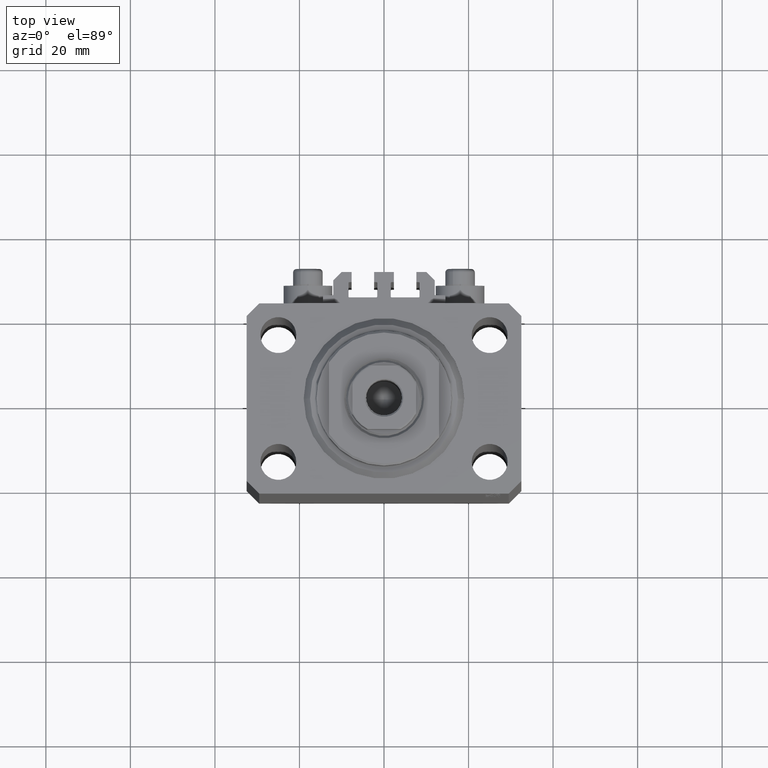
[diagram: clean part render]
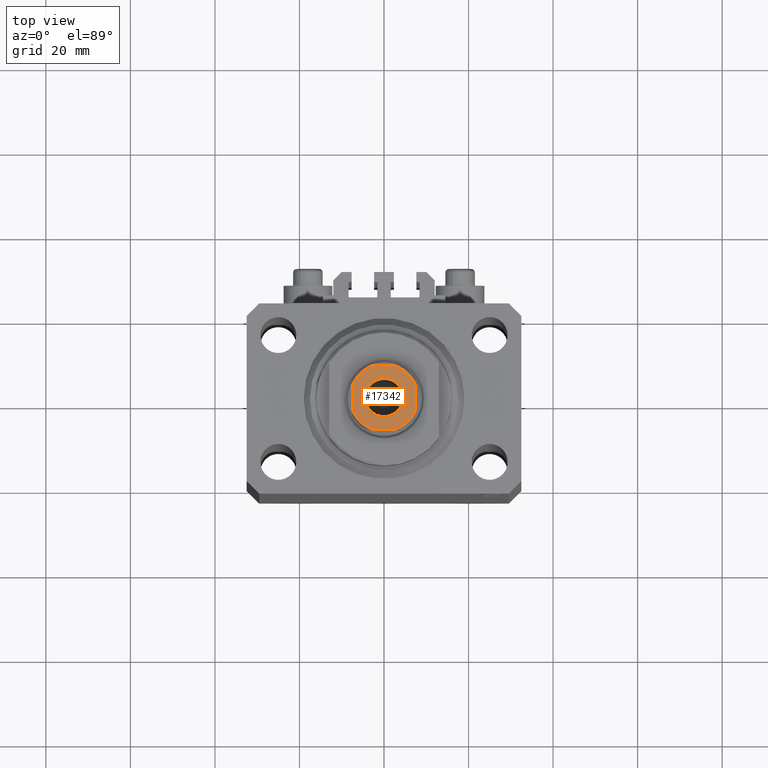
[diagram: same view with one face highlighted and labeled with its STEP entity id]
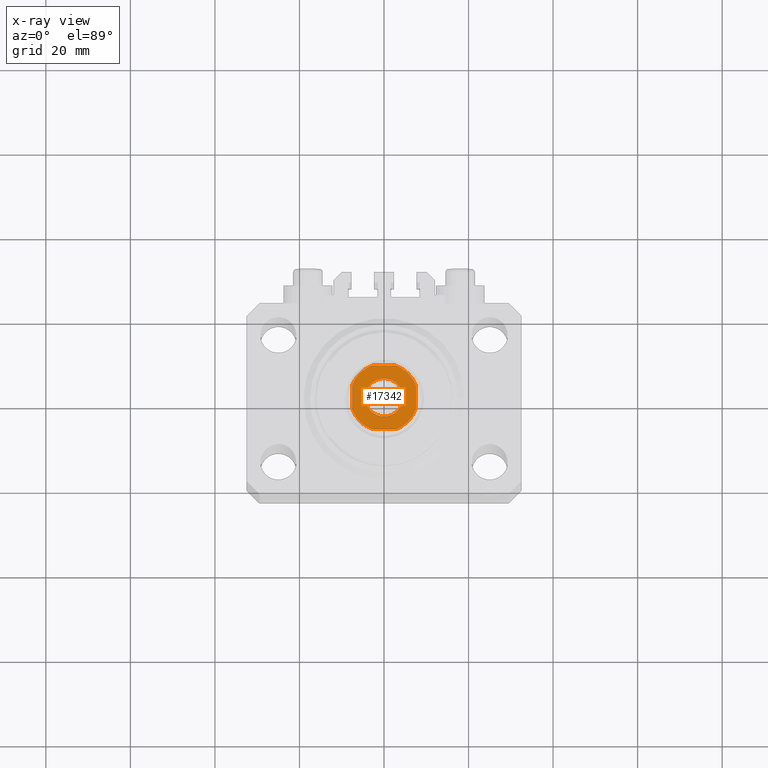
[diagram: x-ray of the same camera — body ghosted, the highlighted face saturated]
A machine part, top view. The second image highlights one B-rep face of the part: STEP entity #17342.
The next image is the same camera in x-ray: the body ghosted, the highlighted face saturated — about 0% of this face is hidden behind the body in this view.
In plain terms, the highlighted planar face has unit normal (0, 0, 1).
Its self-contained STEP definition (entity closure, byte-faithful):
#281 = DIRECTION ( 'NONE',  ( 1.156482317317871478E-16, 1.000000000000000000, -0.000000000000000000 ) ) ;
#819 = VERTEX_POINT ( 'NONE', #9423 ) ;
#2029 = CARTESIAN_POINT ( 'NONE',  ( 0.000000000000000000, 0.000000000000000000, 144.0999999999999943 ) ) ;
#2064 = CARTESIAN_POINT ( 'NONE',  ( -4.549999999999984723, 5.572142936120437605E-16, 144.0999999999999943 ) ) ;
#2948 = AXIS2_PLACEMENT_3D ( 'NONE', #4372, #37632, #19420 ) ;
#3017 = VECTOR ( 'NONE', #281, 1000.000000000000000 ) ;
#3458 = CIRCLE ( 'NONE', #34785, 8.000000000000000000 ) ;
#3656 = DIRECTION ( 'NONE',  ( 1.000000000000000000, 0.000000000000000000, 0.000000000000000000 ) ) ;
#4159 = EDGE_CURVE ( 'NONE', #21316, #46667, #33305, .T. ) ;
#4372 = CARTESIAN_POINT ( 'NONE',  ( 0.000000000000000000, 0.000000000000000000, 144.0999999999999943 ) ) ;
#6267 = CIRCLE ( 'NONE', #30735, 8.000000000000000000 ) ;
#7174 = EDGE_CURVE ( 'NONE', #15981, #15274, #21898, .T. ) ;
#7246 = FACE_OUTER_BOUND ( 'NONE', #31788, .T. ) ;
#7713 = VERTEX_POINT ( 'NONE', #31856 ) ;
#8348 = DIRECTION ( 'NONE',  ( 1.000000000000000000, 0.000000000000000000, 0.000000000000000000 ) ) ;
#9423 = CARTESIAN_POINT ( 'NONE',  ( -7.499999999999998224, 2.783882181415015644, 144.0999999999999943 ) ) ;
#9989 = ORIENTED_EDGE ( 'NONE', *, *, #15925, .T. ) ;
#10284 = AXIS2_PLACEMENT_3D ( 'NONE', #14996, #26486, #26007 ) ;
#10748 = VECTOR ( 'NONE', #18689, 1000.000000000000000 ) ;
#11188 = ORIENTED_EDGE ( 'NONE', *, *, #42614, .T. ) ;
#11964 = DIRECTION ( 'NONE',  ( 1.000000000000000000, 0.000000000000000000, 0.000000000000000000 ) ) ;
#13076 = VERTEX_POINT ( 'NONE', #22460 ) ;
#13570 = EDGE_CURVE ( 'NONE', #7713, #22781, #19853, .T. ) ;
#14054 = CARTESIAN_POINT ( 'NONE',  ( 7.500000000000000888, 2.783882181415007206, 144.0999999999999943 ) ) ;
#14408 = CARTESIAN_POINT ( 'NONE',  ( 7.500000000000001776, 7.500000000000000000, 144.0999999999999943 ) ) ;
#14530 = VECTOR ( 'NONE', #43668, 1000.000000000000000 ) ;
#14645 = LINE ( 'NONE', #40492, #10748 ) ;
#14996 = CARTESIAN_POINT ( 'NONE',  ( 0.000000000000000000, 0.000000000000000000, 144.0999999999999943 ) ) ;
#15039 = DIRECTION ( 'NONE',  ( 5.782411586589357392E-17, -1.000000000000000000, 0.000000000000000000 ) ) ;
#15274 = VERTEX_POINT ( 'NONE', #20562 ) ;
#15925 = EDGE_CURVE ( 'NONE', #13076, #46545, #14645, .T. ) ;
#15981 = VERTEX_POINT ( 'NONE', #22532 ) ;
#16431 = ORIENTED_EDGE ( 'NONE', *, *, #40035, .T. ) ;
#16487 = DIRECTION ( 'NONE',  ( 0.000000000000000000, -0.000000000000000000, -1.000000000000000000 ) ) ;
#17002 = CARTESIAN_POINT ( 'NONE',  ( 2.783882181415008539, -7.500000000000000888, 144.0999999999999943 ) ) ;
#17148 = CIRCLE ( 'NONE', #10284, 8.000000000000000000 ) ;
#17342 = ADVANCED_FACE ( 'NONE', ( #33094, #7246 ), #22081, .T. ) ;
#18320 = AXIS2_PLACEMENT_3D ( 'NONE', #2029, #26935, #27180 ) ;
#18689 = DIRECTION ( 'NONE',  ( 1.000000000000000000, 5.782411586589358625E-17, 0.000000000000000000 ) ) ;
#18851 = EDGE_CURVE ( 'NONE', #24403, #13076, #6267, .T. ) ;
#18906 = DIRECTION ( 'NONE',  ( -0.000000000000000000, 0.000000000000000000, 1.000000000000000000 ) ) ;
#19178 = AXIS2_PLACEMENT_3D ( 'NONE', #46755, #25443, #3656 ) ;
#19420 = DIRECTION ( 'NONE',  ( 1.000000000000000000, 0.000000000000000000, 0.000000000000000000 ) ) ;
#19853 = CIRCLE ( 'NONE', #18320, 4.549999999999984723 ) ;
#20062 = CARTESIAN_POINT ( 'NONE',  ( 0.000000000000000000, 0.000000000000000000, 144.0999999999999943 ) ) ;
#20562 = CARTESIAN_POINT ( 'NONE',  ( -2.783882181415013868, 7.499999999999999112, 144.0999999999999943 ) ) ;
#21316 = VERTEX_POINT ( 'NONE', #31793 ) ;
#21898 = LINE ( 'NONE', #29100, #14530 ) ;
#22081 = PLANE ( 'NONE',  #19178 ) ;
#22460 = CARTESIAN_POINT ( 'NONE',  ( -2.783882181415010315, -7.500000000000000888, 144.0999999999999943 ) ) ;
#22527 = EDGE_CURVE ( 'NONE', #22781, #7713, #37704, .T. ) ;
#22532 = CARTESIAN_POINT ( 'NONE',  ( 2.783882181415012980, 7.500000000000000000, 144.0999999999999943 ) ) ;
#22781 = VERTEX_POINT ( 'NONE', #2064 ) ;
#24210 = CARTESIAN_POINT ( 'NONE',  ( -7.499999999999998224, -2.783882181415016088, 144.0999999999999943 ) ) ;
#24403 = VERTEX_POINT ( 'NONE', #24210 ) ;
#25141 = CIRCLE ( 'NONE', #2948, 8.000000000000000000 ) ;
#25443 = DIRECTION ( 'NONE',  ( -0.000000000000000000, 0.000000000000000000, 1.000000000000000000 ) ) ;
#25492 = ORIENTED_EDGE ( 'NONE', *, *, #45035, .T. ) ;
#25582 = CARTESIAN_POINT ( 'NONE',  ( -7.499999999999998224, 7.499999999999999112, 144.0999999999999943 ) ) ;
#25711 = ORIENTED_EDGE ( 'NONE', *, *, #7174, .T. ) ;
#26007 = DIRECTION ( 'NONE',  ( 1.000000000000000000, 0.000000000000000000, 0.000000000000000000 ) ) ;
#26340 = CARTESIAN_POINT ( 'NONE',  ( 0.000000000000000000, 0.000000000000000000, 144.0999999999999943 ) ) ;
#26486 = DIRECTION ( 'NONE',  ( -0.000000000000000000, 0.000000000000000000, 1.000000000000000000 ) ) ;
#26935 = DIRECTION ( 'NONE',  ( 0.000000000000000000, -0.000000000000000000, -1.000000000000000000 ) ) ;
#27180 = DIRECTION ( 'NONE',  ( 1.000000000000000000, 0.000000000000000000, 0.000000000000000000 ) ) ;
#27278 = DIRECTION ( 'NONE',  ( -0.000000000000000000, 0.000000000000000000, 1.000000000000000000 ) ) ;
#28567 = AXIS2_PLACEMENT_3D ( 'NONE', #20062, #16487, #8348 ) ;
#29100 = CARTESIAN_POINT ( 'NONE',  ( -7.499999999999998224, 7.499999999999999112, 144.0999999999999943 ) ) ;
#29181 = LINE ( 'NONE', #25582, #30218 ) ;
#30218 = VECTOR ( 'NONE', #15039, 1000.000000000000000 ) ;
#30735 = AXIS2_PLACEMENT_3D ( 'NONE', #31342, #27278, #42097 ) ;
#31342 = CARTESIAN_POINT ( 'NONE',  ( 0.000000000000000000, 0.000000000000000000, 144.0999999999999943 ) ) ;
#31788 = EDGE_LOOP ( 'NONE', ( #11188, #40799, #9989, #32659, #35701, #25492, #25711, #16431 ) ) ;
#31793 = CARTESIAN_POINT ( 'NONE',  ( 7.500000000000000888, -2.783882181415009427, 144.0999999999999943 ) ) ;
#31856 = CARTESIAN_POINT ( 'NONE',  ( 4.549999999999984723, 0.000000000000000000, 144.0999999999999943 ) ) ;
#32659 = ORIENTED_EDGE ( 'NONE', *, *, #42443, .T. ) ;
#33094 = FACE_BOUND ( 'NONE', #37064, .T. ) ;
#33305 = LINE ( 'NONE', #14408, #3017 ) ;
#34785 = AXIS2_PLACEMENT_3D ( 'NONE', #26340, #18906, #11964 ) ;
#35701 = ORIENTED_EDGE ( 'NONE', *, *, #4159, .T. ) ;
#37043 = ORIENTED_EDGE ( 'NONE', *, *, #13570, .T. ) ;
#37064 = EDGE_LOOP ( 'NONE', ( #37043, #47300 ) ) ;
#37632 = DIRECTION ( 'NONE',  ( -0.000000000000000000, 0.000000000000000000, 1.000000000000000000 ) ) ;
#37704 = CIRCLE ( 'NONE', #28567, 4.549999999999984723 ) ;
#40035 = EDGE_CURVE ( 'NONE', #15274, #819, #25141, .T. ) ;
#40492 = CARTESIAN_POINT ( 'NONE',  ( -7.499999999999997335, -7.500000000000000888, 144.0999999999999943 ) ) ;
#40799 = ORIENTED_EDGE ( 'NONE', *, *, #18851, .T. ) ;
#42097 = DIRECTION ( 'NONE',  ( 1.000000000000000000, 0.000000000000000000, 0.000000000000000000 ) ) ;
#42443 = EDGE_CURVE ( 'NONE', #46545, #21316, #3458, .T. ) ;
#42614 = EDGE_CURVE ( 'NONE', #819, #24403, #29181, .T. ) ;
#43668 = DIRECTION ( 'NONE',  ( -1.000000000000000000, -5.782411586589357392E-17, -0.000000000000000000 ) ) ;
#45035 = EDGE_CURVE ( 'NONE', #46667, #15981, #17148, .T. ) ;
#46545 = VERTEX_POINT ( 'NONE', #17002 ) ;
#46667 = VERTEX_POINT ( 'NONE', #14054 ) ;
#46755 = CARTESIAN_POINT ( 'NONE',  ( 0.000000000000000000, 0.000000000000000000, 144.0999999999999943 ) ) ;
#47300 = ORIENTED_EDGE ( 'NONE', *, *, #22527, .T. ) ;